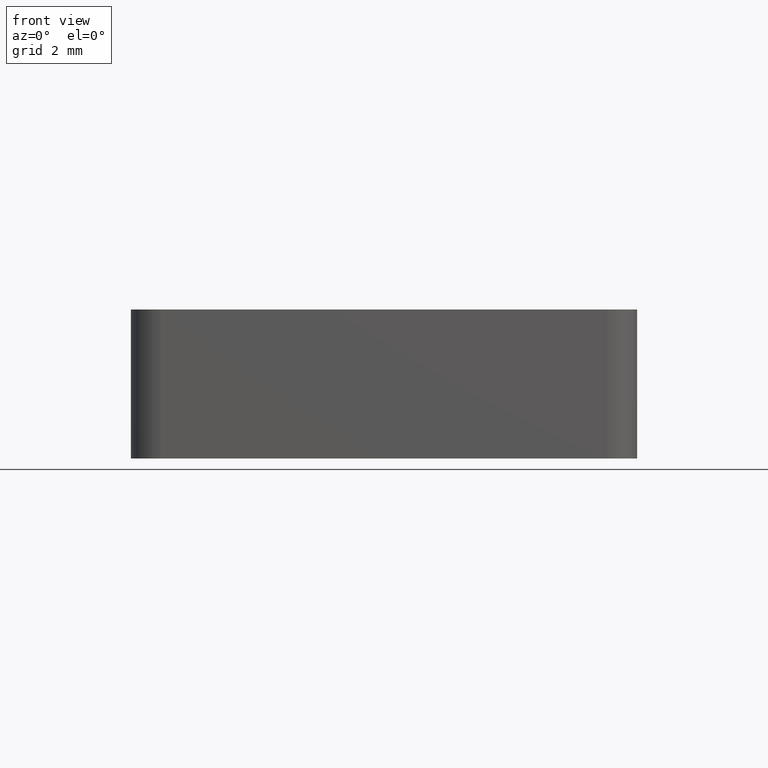
[diagram: clean part render]
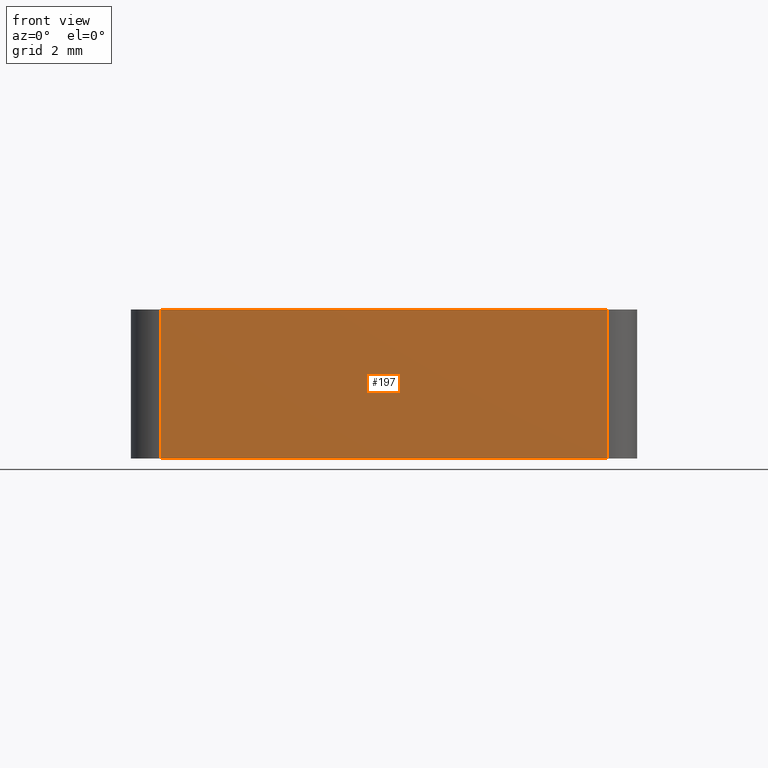
[diagram: same view with one face highlighted and labeled with its STEP entity id]
A machine part, front view. The second image highlights one B-rep face of the part: STEP entity #197.
In plain terms, the highlighted planar face has unit normal (0, 1, 0).
Its self-contained STEP definition (entity closure, byte-faithful):
#18=PLANE('',#233);
#25=FACE_OUTER_BOUND('',#36,.T.);
#36=EDGE_LOOP('',(#144,#145,#146,#147));
#52=LINE('',#330,#69);
#53=LINE('',#332,#70);
#54=LINE('',#334,#71);
#55=LINE('',#335,#72);
#69=VECTOR('',#267,15.);
#70=VECTOR('',#268,5.);
#71=VECTOR('',#269,15.);
#72=VECTOR('',#270,5.);
#97=VERTEX_POINT('',#328);
#98=VERTEX_POINT('',#329);
#99=VERTEX_POINT('',#331);
#100=VERTEX_POINT('',#333);
#116=EDGE_CURVE('',#97,#98,#52,.T.);
#117=EDGE_CURVE('',#98,#99,#53,.T.);
#118=EDGE_CURVE('',#100,#99,#54,.T.);
#119=EDGE_CURVE('',#100,#97,#55,.T.);
#144=ORIENTED_EDGE('',*,*,#116,.T.);
#145=ORIENTED_EDGE('',*,*,#117,.T.);
#146=ORIENTED_EDGE('',*,*,#118,.F.);
#147=ORIENTED_EDGE('',*,*,#119,.T.);
#197=ADVANCED_FACE('',(#25),#18,.F.);
#233=AXIS2_PLACEMENT_3D('',#327,#265,#266);
#265=DIRECTION('center_axis',(0.,1.,0.));
#266=DIRECTION('ref_axis',(0.,0.,1.));
#267=DIRECTION('',(1.,0.,0.));
#268=DIRECTION('',(0.,0.,1.));
#269=DIRECTION('',(1.,0.,0.));
#270=DIRECTION('',(0.,0.,-1.));
#327=CARTESIAN_POINT('Origin',(-8.25,-8.5,-5.25));
#328=CARTESIAN_POINT('',(-7.5,-8.5,-5.));
#329=CARTESIAN_POINT('',(7.49999999999999,-8.5,-5.));
#330=CARTESIAN_POINT('',(-7.5,-8.5,-5.));
#331=CARTESIAN_POINT('',(7.49999999999999,-8.5,0.));
#332=CARTESIAN_POINT('',(7.49999999999999,-8.5,-5.));
#333=CARTESIAN_POINT('',(-7.5,-8.5,0.));
#334=CARTESIAN_POINT('',(-7.5,-8.5,0.));
#335=CARTESIAN_POINT('',(-7.5,-8.5,0.));